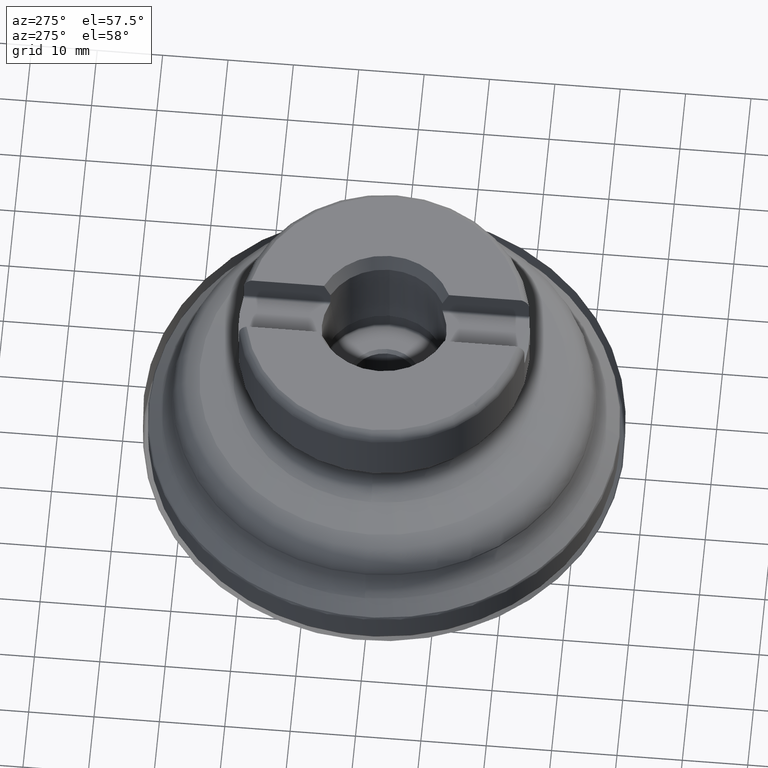
[diagram: clean part render]
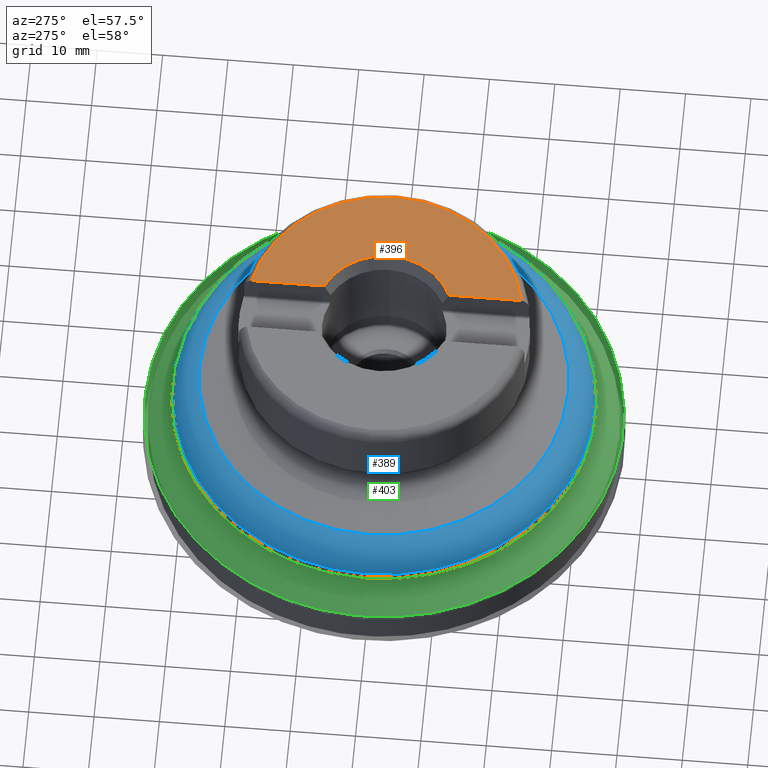
[diagram: same view with three faces highlighted in distinct colors, each labeled with its STEP entity id]
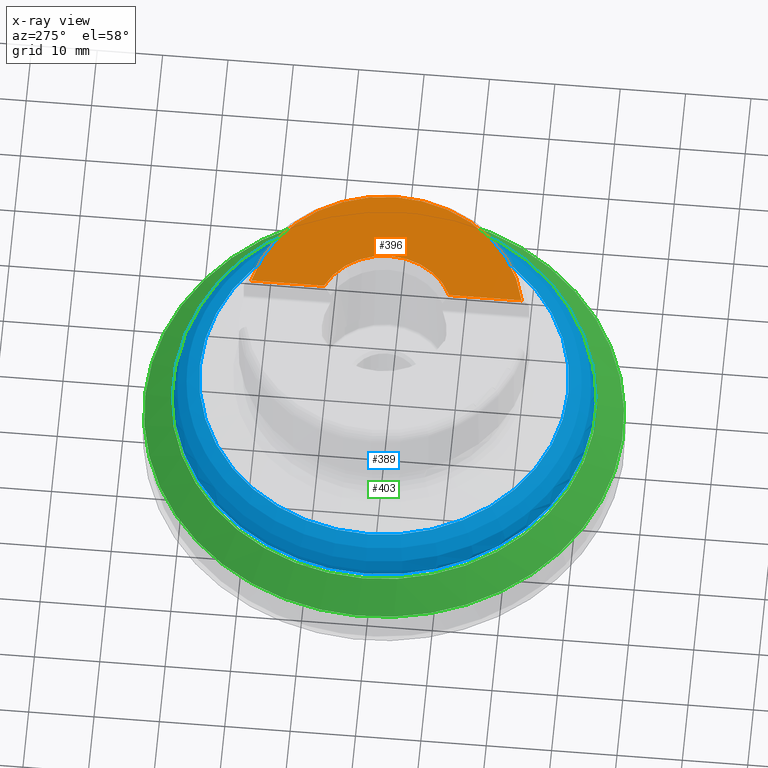
[diagram: x-ray of the same camera — body ghosted, the three highlighted faces saturated]
A machine part, auxiliary view with three faces highlighted in distinct colors.
The next image is the same camera in x-ray (body ghosted, the three faces saturated) — at least one of them is partly hidden behind the body in this view.
Their STEP definitions:

[orange] entity #396 — the highlighted planar face has unit normal (0, 0, 1).
#291=PLANE('',#1102);
#301=LINE('',#1562,#329);
#305=LINE('',#1569,#333);
#329=VECTOR('',#1146,1.);
#333=VECTOR('',#1152,1.);
#396=ADVANCED_FACE('',(#440),#291,.T.);
#440=FACE_OUTER_BOUND('',#522,.T.);
#522=EDGE_LOOP('',(#761,#762,#763,#764));
#558=CIRCLE('',#1030,21.0967797887081);
#562=CIRCLE('',#1040,10.4349255856655);
#761=ORIENTED_EDGE('',*,*,#886,.F.);
#762=ORIENTED_EDGE('',*,*,#900,.F.);
#763=ORIENTED_EDGE('',*,*,#911,.T.);
#764=ORIENTED_EDGE('',*,*,#904,.F.);
#806=VERTEX_POINT('',#1511);
#807=VERTEX_POINT('',#1513);
#817=VERTEX_POINT('',#1560);
#821=VERTEX_POINT('',#1570);
#886=EDGE_CURVE('',#806,#807,#558,.T.);
#900=EDGE_CURVE('',#817,#806,#301,.T.);
#904=EDGE_CURVE('',#807,#821,#305,.T.);
#911=EDGE_CURVE('',#817,#821,#562,.T.);
#1030=AXIS2_PLACEMENT_3D('',#1512,#1128,#1129);
#1040=AXIS2_PLACEMENT_3D('',#1585,#1164,#1165);
#1102=AXIS2_PLACEMENT_3D('',#2011,#1301,#1302);
#1128=DIRECTION('',(-1.17145536458253E-15,-1.33226762955019E-15,-1.));
#1129=DIRECTION('',(-1.,3.1641356201817E-15,1.31563091114431E-15));
#1146=DIRECTION('',(3.16413562018169E-15,1.,-1.33226762955019E-15));
#1152=DIRECTION('',(3.16413562018169E-15,1.,-1.33226762955019E-15));
#1164=DIRECTION('',(-1.17145536458253E-15,-1.33226762955019E-15,-1.));
#1165=DIRECTION('',(-1.,3.1641356201817E-15,1.32993644218014E-15));
#1301=DIRECTION('',(1.17145536458253E-15,1.33226762955019E-15,1.));
#1302=DIRECTION('',(-1.,3.1641356201817E-15,1.17267306976032E-15));
#1511=CARTESIAN_POINT('',(4.17500000000012,20.6795428492326,40.));
#1512=CARTESIAN_POINT('',(4.68582145833011E-14,5.32907051820075E-14,40.));
#1513=CARTESIAN_POINT('',(4.17499999999999,-20.6795428492474,39.9999999999929));
#1560=CARTESIAN_POINT('',(4.17500000000008,9.56331778089474,40.));
#1562=CARTESIAN_POINT('',(4.1749999999999,-48.,40.0000000000001));
#1569=CARTESIAN_POINT('',(4.1749999999999,-48.,40.0000000000001));
#1570=CARTESIAN_POINT('',(4.17500000000002,-9.56331778089466,40.));
#1585=CARTESIAN_POINT('',(4.68582145833011E-14,5.32907051820075E-14,40.));
#2011=CARTESIAN_POINT('',(-12.2,9.18931597482242E-14,40.));

[blue] entity #389 — the highlighted toroidal blend (fillet) surface has major radius 27.2 mm and minor (blend) radius 5 mm.
#230=FACE_BOUND('',#508,.T.);
#231=FACE_BOUND('',#509,.T.);
#389=ADVANCED_FACE('',(#230,#231),#419,.T.);
#419=TOROIDAL_SURFACE('',#1094,27.2,5.);
#508=EDGE_LOOP('',(#747));
#509=EDGE_LOOP('',(#748));
#573=CIRCLE('',#1054,32.2);
#575=CIRCLE('',#1057,28.1872091708465);
#747=ORIENTED_EDGE('',*,*,#933,.F.);
#748=ORIENTED_EDGE('',*,*,#935,.F.);
#843=VERTEX_POINT('',#1868);
#845=VERTEX_POINT('',#1873);
#933=EDGE_CURVE('',#843,#843,#573,.T.);
#935=EDGE_CURVE('',#845,#845,#575,.T.);
#1054=AXIS2_PLACEMENT_3D('',#1867,#1201,#1202);
#1057=AXIS2_PLACEMENT_3D('',#1872,#1207,#1208);
#1094=AXIS2_PLACEMENT_3D('',#2002,#1285,#1286);
#1201=DIRECTION('',(-1.17145536458253E-15,-1.33226762955019E-15,-1.));
#1202=DIRECTION('',(1.,-3.1641356201817E-15,-1.18521479725123E-15));
#1207=DIRECTION('',(1.17145536458253E-15,1.33226762955019E-15,1.));
#1208=DIRECTION('',(-1.,3.1641356201817E-15,1.23085862489075E-15));
#1285=DIRECTION('',(-1.17145536458253E-15,-1.33226762955019E-15,-1.));
#1286=DIRECTION('',(1.,-3.1641356201817E-15,-1.18521479725123E-15));
#1867=CARTESIAN_POINT('',(1.93759712360731E-14,2.20358197583696E-14,16.5400849420994));
#1868=CARTESIAN_POINT('',(32.2,-7.98493472114811E-14,16.5400849420994));
#1872=CARTESIAN_POINT('',(2.51179452431663E-14,2.85660268244281E-14,21.441657960325));
#1873=CARTESIAN_POINT('',(-28.1872091708465,1.17754179395416E-13,21.441657960325));
#2002=CARTESIAN_POINT('',(1.93759712360731E-14,2.20358197583696E-14,16.5400849420994));

[green] entity #403 — the highlighted face is a SurfaceOfRevolution surface.
#124=SURFACE_OF_REVOLUTION('',#315,#149);
#149=AXIS1_PLACEMENT('',#2047,#1327);
#254=FACE_BOUND('',#534,.T.);
#255=FACE_BOUND('',#535,.T.);
#315=LINE('',#2046,#343);
#343=VECTOR('',#1326,5.97815706176458);
#403=ADVANCED_FACE('',(#254,#255),#124,.F.);
#534=EDGE_LOOP('',(#779));
#535=EDGE_LOOP('',(#780));
#598=CIRCLE('',#1109,32.4319910785073);
#599=CIRCLE('',#1110,36.5896778238371);
#779=ORIENTED_EDGE('',*,*,#966,.T.);
#780=ORIENTED_EDGE('',*,*,#967,.F.);
#870=VERTEX_POINT('',#2038);
#871=VERTEX_POINT('',#2045);
#966=EDGE_CURVE('',#870,#870,#598,.T.);
#967=EDGE_CURVE('',#871,#871,#599,.T.);
#1109=AXIS2_PLACEMENT_3D('',#2037,#1321,#1322);
#1110=AXIS2_PLACEMENT_3D('',#2044,#1324,#1325);
#1321=DIRECTION('',(1.17145536458252E-15,0.,1.));
#1322=DIRECTION('',(1.,0.,-1.17673677139055E-15));
#1324=DIRECTION('',(1.17145536458252E-15,0.,1.));
#1325=DIRECTION('',(1.,0.,-1.18525468051996E-15));
#1326=DIRECTION('',(0.0861746391405327,0.705931791107952,0.703017949893257));
#1327=DIRECTION('',(1.17145536458252E-15,0.,1.));
#2037=CARTESIAN_POINT('',(1.82323206802796E-14,0.,15.5638202116025));
#2038=CARTESIAN_POINT('',(32.4319910785073,0.,15.5638202116024));
#2044=CARTESIAN_POINT('',(1.33089845192699E-14,0.,11.3610683954765));
#2045=CARTESIAN_POINT('',(36.5896778238371,0.,11.3610683954764));
#2046=CARTESIAN_POINT('',(2.7959402393257,-36.4826977423051,11.3610684899008));
#2047=CARTESIAN_POINT('',(0.,0.,0.));